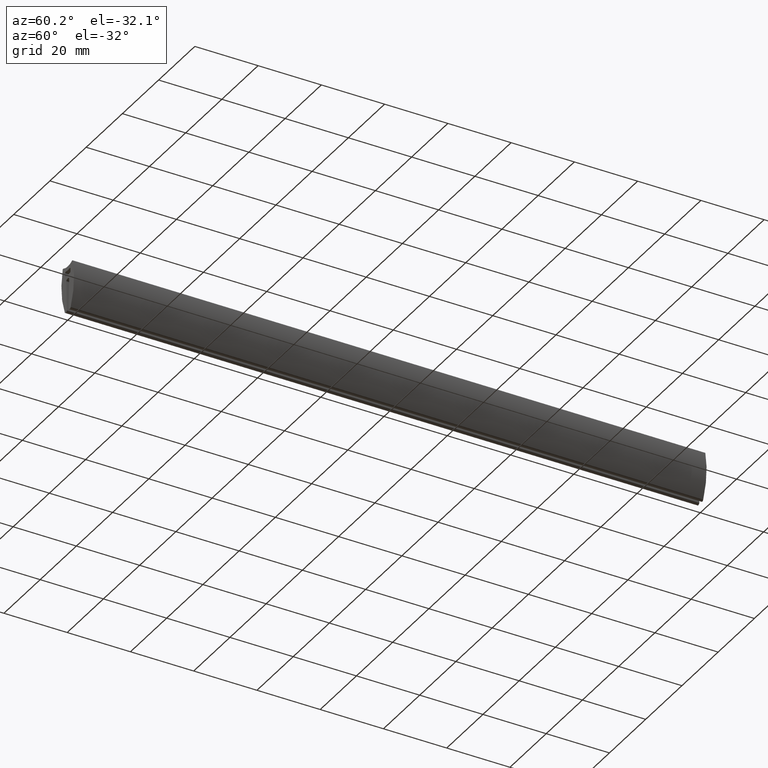
[diagram: clean part render]
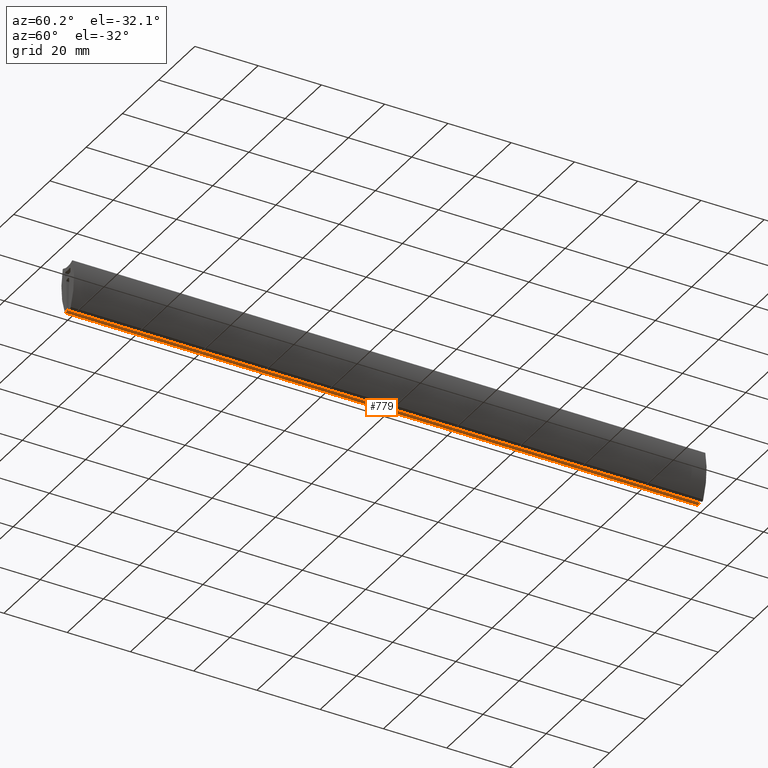
[diagram: same view with one face highlighted and labeled with its STEP entity id]
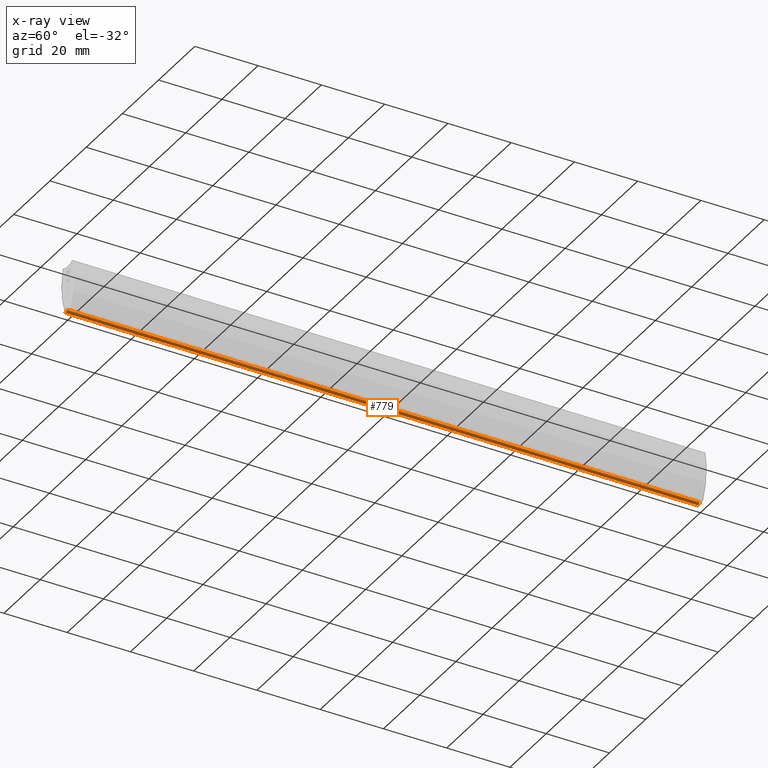
[diagram: x-ray of the same camera — body ghosted, the highlighted face saturated]
A machine part, auxiliary view. The second image highlights one B-rep face of the part: STEP entity #779.
The next image is the same camera in x-ray: the body ghosted, the highlighted face saturated — about 0% of this face is hidden behind the body in this view.
In plain terms, the highlighted face is a freeform B-spline surface patch.
Its self-contained STEP definition (entity closure, byte-faithful):
#115=CARTESIAN_POINT('',(-1.627461204791730,0.0,-14.022243352574860));
#116=VERTEX_POINT('',#115);
#130=CARTESIAN_POINT('',(-0.500306627626724,0.0,-13.765540948015801));
#131=VERTEX_POINT('',#130);
#132=CARTESIAN_POINT('',(-1.627461204791732,0.0,-14.022243352574860));
#133=CARTESIAN_POINT('',(-1.431446960213562,0.0,-14.466443374506785));
#134=CARTESIAN_POINT('',(-0.958043095485059,0.0,-14.358628605472170));
#135=CARTESIAN_POINT('',(-0.484639230756555,0.0,-14.250813836437551));
#136=CARTESIAN_POINT('',(-0.500306627626724,0.0,-13.765540948015801));
#144=(BOUNDED_CURVE()B_SPLINE_CURVE(2,(#132,#133,#134,#135,#136),.UNSPECIFIED.,.F.,.U.)B_SPLINE_CURVE_WITH_KNOTS((3,2,3),(0.0,0.500000000000000,1.0),.UNSPECIFIED.)CURVE()GEOMETRIC_REPRESENTATION_ITEM()RATIONAL_B_SPLINE_CURVE((1.0,0.771517611672876,1.0,0.771517611672876,1.0))REPRESENTATION_ITEM(''));
#145=EDGE_CURVE('',#116,#131,#144,.T.);
#409=CARTESIAN_POINT('',(-0.500306627626724,200.0,-13.765540948015801));
#410=VERTEX_POINT('',#409);
#416=CARTESIAN_POINT('',(-1.627461204791730,200.0,-14.022243352574860));
#417=VERTEX_POINT('',#416);
#418=CARTESIAN_POINT('',(-1.627461204791732,200.0,-14.022243352574860));
#419=CARTESIAN_POINT('',(-1.431446960213562,200.000000000000090,-14.466443374506785));
#420=CARTESIAN_POINT('',(-0.958043095485059,200.0,-14.358628605472170));
#421=CARTESIAN_POINT('',(-0.484639230756555,200.000000000000090,-14.250813836437551));
#422=CARTESIAN_POINT('',(-0.500306627626724,200.0,-13.765540948015801));
#430=(BOUNDED_CURVE()B_SPLINE_CURVE(2,(#418,#419,#420,#421,#422),.UNSPECIFIED.,.F.,.U.)B_SPLINE_CURVE_WITH_KNOTS((3,2,3),(0.0,0.500000000000000,1.0),.UNSPECIFIED.)CURVE()GEOMETRIC_REPRESENTATION_ITEM()RATIONAL_B_SPLINE_CURVE((1.0,0.771517611672876,1.0,0.771517611672876,1.0))REPRESENTATION_ITEM(''));
#431=EDGE_CURVE('',#417,#410,#430,.T.);
#741=CARTESIAN_POINT('',(-0.500306627626724,200.0,-13.765540948015801));
#742=CARTESIAN_POINT('',(-0.500306627626724,0.0,-13.765540948015801));
#743=QUASI_UNIFORM_CURVE('',1,(#741,#742),.UNSPECIFIED.,.F.,.U.);
#744=EDGE_CURVE('',#410,#131,#743,.T.);
#751=CARTESIAN_POINT('',(-0.501665580381628,205.0,-13.740284735717880));
#752=CARTESIAN_POINT('',(-0.501665580381628,-5.125000000000000,-13.740284735717880));
#753=CARTESIAN_POINT('',(-0.462854308058690,205.000000000000030,-14.255177338522596));
#754=CARTESIAN_POINT('',(-0.462854308058690,-5.125000000000000,-14.255177338522596));
#755=CARTESIAN_POINT('',(-0.968276045677280,205.0,-14.360863545876921));
#756=CARTESIAN_POINT('',(-0.968276045677280,-5.125000000000000,-14.360863545876921));
#757=CARTESIAN_POINT('',(-1.473697783295869,205.000000000000030,-14.466549753231249));
#758=CARTESIAN_POINT('',(-1.473697783295869,-5.125000000000000,-14.466549753231249));
#759=CARTESIAN_POINT('',(-1.644450605372002,205.0,-13.979246786858820));
#760=CARTESIAN_POINT('',(-1.644450605372002,-5.125000000000000,-13.979246786858820));
#768=(BOUNDED_SURFACE()B_SPLINE_SURFACE(1,2,((#751,#753,#755,#757,#759),(#752,#754,#756,#758,#760)),.UNSPECIFIED.,.F.,.F.,.U.)B_SPLINE_SURFACE_WITH_KNOTS((2,2),(3,2,3),(0.0,210.125000000000000),(0.0,1.0,2.0),.UNSPECIFIED.)GEOMETRIC_REPRESENTATION_ITEM()RATIONAL_B_SPLINE_SURFACE(((1.0,0.751839807478977,1.0,0.751839807478977,1.0),(1.0,0.751839807478977,1.0,0.751839807478977,1.0)))REPRESENTATION_ITEM('')SURFACE());
#769=ORIENTED_EDGE('',*,*,#145,.F.);
#770=CARTESIAN_POINT('',(-1.627461204791730,200.0,-14.022243352574860));
#771=CARTESIAN_POINT('',(-1.627461204791730,0.0,-14.022243352574860));
#772=QUASI_UNIFORM_CURVE('',1,(#770,#771),.UNSPECIFIED.,.F.,.U.);
#773=EDGE_CURVE('',#417,#116,#772,.T.);
#774=ORIENTED_EDGE('',*,*,#773,.F.);
#775=ORIENTED_EDGE('',*,*,#431,.T.);
#776=ORIENTED_EDGE('',*,*,#744,.T.);
#777=EDGE_LOOP('',(#769,#774,#775,#776));
#778=FACE_OUTER_BOUND('',#777,.T.);
#779=ADVANCED_FACE('',(#778),#768,.T.);